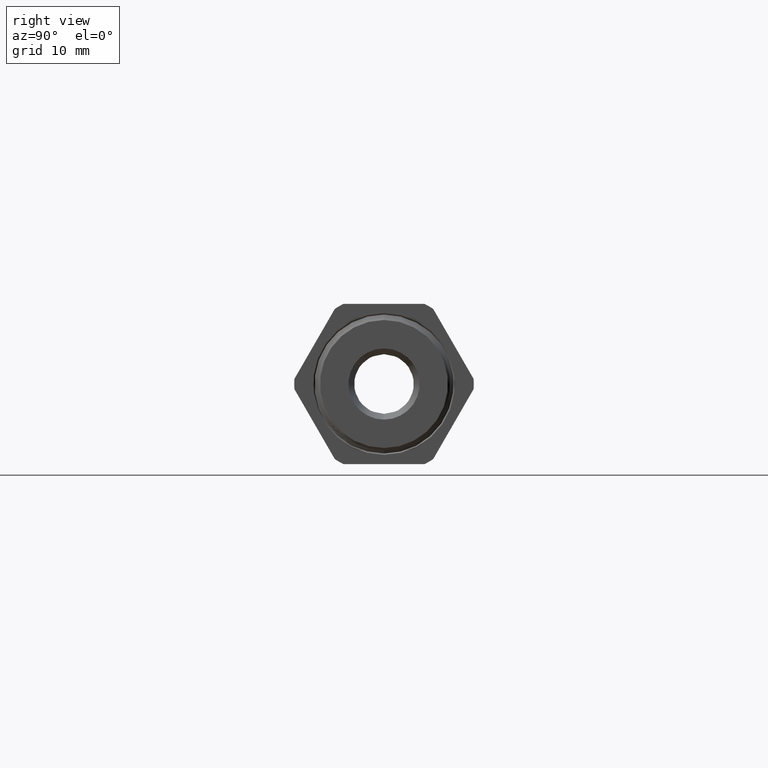
[diagram: clean part render]
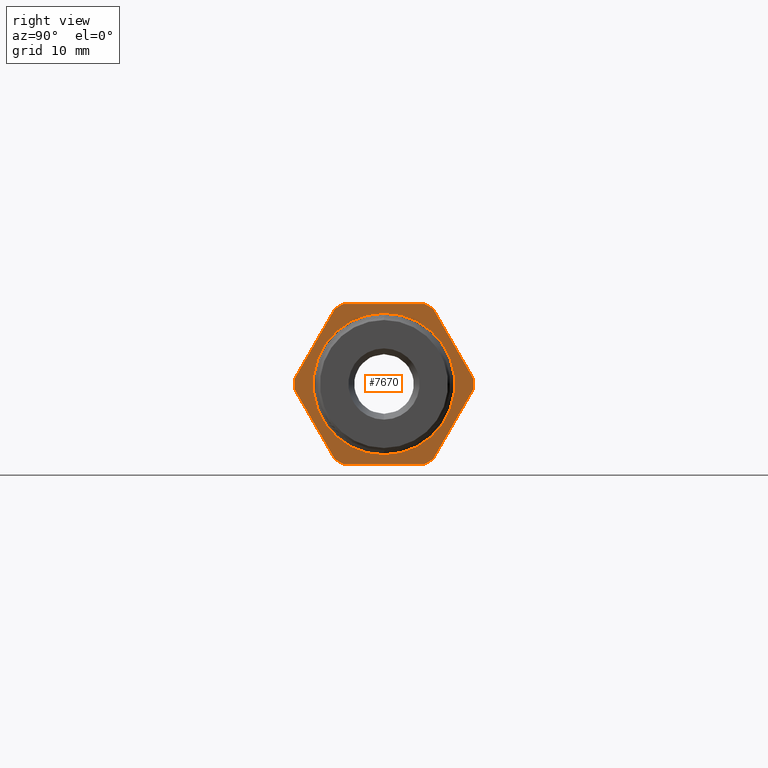
[diagram: same view with one face highlighted and labeled with its STEP entity id]
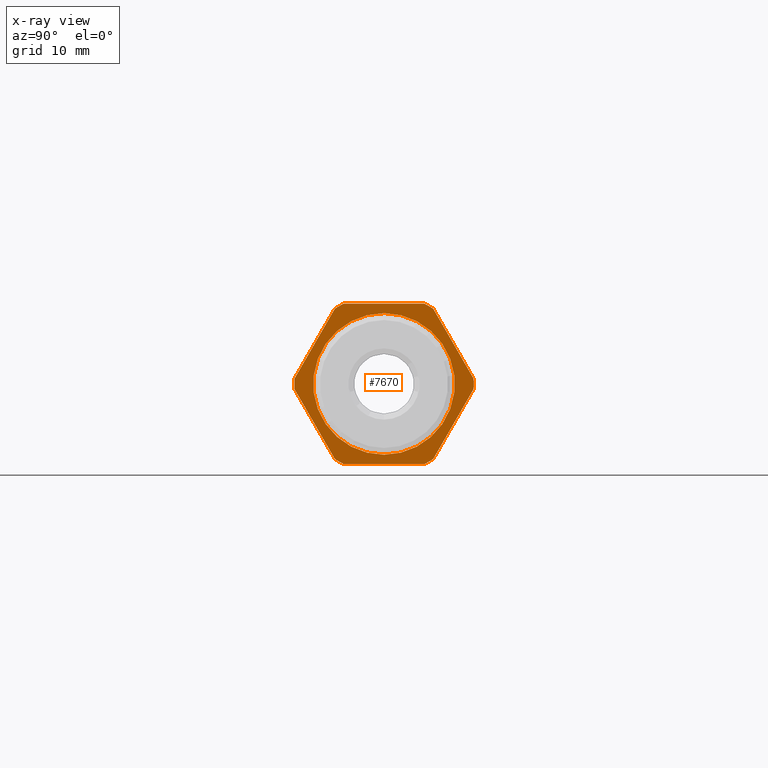
[diagram: x-ray of the same camera — body ghosted, the highlighted face saturated]
A machine part, right view. The second image highlights one B-rep face of the part: STEP entity #7670.
The next image is the same camera in x-ray: the body ghosted, the highlighted face saturated — about 0% of this face is hidden behind the body in this view.
In plain terms, the highlighted planar face has unit normal (-1, 0, 0).
Its self-contained STEP definition (entity closure, byte-faithful):
#2202 = VERTEX_POINT ( 'NONE', #10396 ) ;
#2206 = EDGE_CURVE ( 'NONE', #2209, #2202, #10438, .T. ) ;
#2209 = VERTEX_POINT ( 'NONE', #10518 ) ;
#6137 = PLANE ( 'NONE',  #6208 ) ;
#6138 = FACE_BOUND ( 'NONE', #7735, .T. ) ;
#6139 = FACE_OUTER_BOUND ( 'NONE', #7672, .T. ) ;
#6148 = CARTESIAN_POINT ( 'NONE',  ( 0.0000000000000000000, 0.2885024497772522000, 0.4402990988777105700 ) ) ;
#6149 = DIRECTION ( 'NONE',  ( 0.0000000000000000000, -0.5000000000000001100, 0.8660254037844386000 ) ) ;
#6150 = VECTOR ( 'NONE', #6149, 39.37007874015748100 ) ;
#6151 = CARTESIAN_POINT ( 'NONE',  ( 0.0000000000000000000, 0.5255614297801198800, 0.02970090112228930500 ) ) ;
#6152 = LINE ( 'NONE', #6151, #6150 ) ;
#6193 = CARTESIAN_POINT ( 'NONE',  ( 0.0000000000000000000, -0.2370589800028678500, -0.4699999999999997500 ) ) ;
#6194 = DIRECTION ( 'NONE',  ( 0.0000000000000000000, 0.0000000000000000000, 1.000000000000000000 ) ) ;
#6195 = DIRECTION ( 'NONE',  ( -1.000000000000000000, 0.0000000000000000000, 0.0000000000000000000 ) ) ;
#6196 = CARTESIAN_POINT ( 'NONE',  ( 0.0000000000000000000, 0.0000000000000000000, 0.0000000000000000000 ) ) ;
#6197 = AXIS2_PLACEMENT_3D ( 'NONE', #6196, #6195, #6194 ) ;
#6198 = CIRCLE ( 'NONE', #6197, 0.5263999999999999800 ) ;
#6199 = CARTESIAN_POINT ( 'NONE',  ( 0.0000000000000000000, -0.2885024497772522600, -0.4402990988777105700 ) ) ;
#6200 = CARTESIAN_POINT ( 'NONE',  ( 0.0000000000000000000, -0.5255614297801198800, -0.02970090112228941000 ) ) ;
#6201 = DIRECTION ( 'NONE',  ( 0.0000000000000000000, 0.5000000000000001100, -0.8660254037844386000 ) ) ;
#6202 = VECTOR ( 'NONE', #6201, 39.37007874015748100 ) ;
#6203 = CARTESIAN_POINT ( 'NONE',  ( 0.0000000000000000000, -0.5255614297801198800, -0.02970090112228941000 ) ) ;
#6204 = LINE ( 'NONE', #6203, #6202 ) ;
#6205 = DIRECTION ( 'NONE',  ( 0.0000000000000000000, 0.0000000000000000000, 1.000000000000000000 ) ) ;
#6206 = DIRECTION ( 'NONE',  ( -1.000000000000000000, 0.0000000000000000000, 0.0000000000000000000 ) ) ;
#6207 = CARTESIAN_POINT ( 'NONE',  ( 0.0000000000000000000, 0.5263999999999999800, 0.0000000000000000000 ) ) ;
#6208 = AXIS2_PLACEMENT_3D ( 'NONE', #6207, #6206, #6205 ) ;
#6236 = LINE ( 'NONE', #6300, #6299 ) ;
#6237 = CARTESIAN_POINT ( 'NONE',  ( 0.0000000000000000000, 0.2370589800028677600, 0.4699999999999998600 ) ) ;
#6238 = DIRECTION ( 'NONE',  ( 0.0000000000000000000, 0.0000000000000000000, 1.000000000000000000 ) ) ;
#6239 = DIRECTION ( 'NONE',  ( -1.000000000000000000, 0.0000000000000000000, 0.0000000000000000000 ) ) ;
#6240 = CARTESIAN_POINT ( 'NONE',  ( 0.0000000000000000000, 0.0000000000000000000, 0.0000000000000000000 ) ) ;
#6241 = AXIS2_PLACEMENT_3D ( 'NONE', #6240, #6239, #6238 ) ;
#6246 = CIRCLE ( 'NONE', #6241, 0.5263999999999999800 ) ;
#6260 = DIRECTION ( 'NONE',  ( 0.0000000000000000000, 0.0000000000000000000, 1.000000000000000000 ) ) ;
#6261 = DIRECTION ( 'NONE',  ( 1.000000000000000000, 0.0000000000000000000, 0.0000000000000000000 ) ) ;
#6262 = CARTESIAN_POINT ( 'NONE',  ( 0.0000000000000000000, 0.0000000000000000000, 0.0000000000000000000 ) ) ;
#6263 = AXIS2_PLACEMENT_3D ( 'NONE', #6262, #6261, #6260 ) ;
#6264 = CIRCLE ( 'NONE', #6263, 0.4149999999999998100 ) ;
#6270 = DIRECTION ( 'NONE',  ( 0.0000000000000000000, 0.0000000000000000000, 1.000000000000000000 ) ) ;
#6271 = DIRECTION ( 'NONE',  ( -1.000000000000000000, 0.0000000000000000000, 0.0000000000000000000 ) ) ;
#6272 = CARTESIAN_POINT ( 'NONE',  ( 0.0000000000000000000, 0.0000000000000000000, 0.0000000000000000000 ) ) ;
#6273 = AXIS2_PLACEMENT_3D ( 'NONE', #6272, #6271, #6270 ) ;
#6274 = CIRCLE ( 'NONE', #6273, 0.5263999999999999800 ) ;
#6275 = CARTESIAN_POINT ( 'NONE',  ( 0.0000000000000000000, 0.2885024497772524200, -0.4402990988777104000 ) ) ;
#6276 = CARTESIAN_POINT ( 'NONE',  ( 0.0000000000000000000, 0.2370589800028677400, -0.4699999999999999200 ) ) ;
#6277 = DIRECTION ( 'NONE',  ( 0.0000000000000000000, 1.000000000000000000, 0.0000000000000000000 ) ) ;
#6278 = VECTOR ( 'NONE', #6277, 39.37007874015748100 ) ;
#6279 = CARTESIAN_POINT ( 'NONE',  ( 0.0000000000000000000, -0.2370589800028677400, -0.4699999999999999200 ) ) ;
#6280 = LINE ( 'NONE', #6279, #6278 ) ;
#6281 = DIRECTION ( 'NONE',  ( 0.0000000000000000000, 0.0000000000000000000, 1.000000000000000000 ) ) ;
#6282 = DIRECTION ( 'NONE',  ( -1.000000000000000000, 0.0000000000000000000, 0.0000000000000000000 ) ) ;
#6283 = CARTESIAN_POINT ( 'NONE',  ( 0.0000000000000000000, 0.0000000000000000000, 0.0000000000000000000 ) ) ;
#6284 = AXIS2_PLACEMENT_3D ( 'NONE', #6283, #6282, #6281 ) ;
#6285 = CIRCLE ( 'NONE', #6284, 0.5263999999999999800 ) ;
#6286 = CARTESIAN_POINT ( 'NONE',  ( 0.0000000000000000000, -0.5255614297801199900, 0.02970090112228907300 ) ) ;
#6287 = DIRECTION ( 'NONE',  ( 0.0000000000000000000, -0.5000000000000000000, -0.8660254037844386000 ) ) ;
#6288 = VECTOR ( 'NONE', #6287, 39.37007874015748900 ) ;
#6289 = CARTESIAN_POINT ( 'NONE',  ( 0.0000000000000000000, -0.2885024497772518700, 0.4402990988777108500 ) ) ;
#6290 = LINE ( 'NONE', #6289, #6288 ) ;
#6291 = CARTESIAN_POINT ( 'NONE',  ( 0.0000000000000000000, -0.2885024497772517000, 0.4402990988777108500 ) ) ;
#6292 = DIRECTION ( 'NONE',  ( 0.0000000000000000000, 0.0000000000000000000, 1.000000000000000000 ) ) ;
#6293 = DIRECTION ( 'NONE',  ( -1.000000000000000000, 0.0000000000000000000, 0.0000000000000000000 ) ) ;
#6294 = CARTESIAN_POINT ( 'NONE',  ( 0.0000000000000000000, 0.0000000000000000000, 0.0000000000000000000 ) ) ;
#6295 = AXIS2_PLACEMENT_3D ( 'NONE', #6294, #6293, #6292 ) ;
#6296 = CIRCLE ( 'NONE', #6295, 0.5263999999999999800 ) ;
#6297 = CARTESIAN_POINT ( 'NONE',  ( 0.0000000000000000000, -0.2370589800028677400, 0.4699999999999999200 ) ) ;
#6298 = DIRECTION ( 'NONE',  ( 0.0000000000000000000, -1.000000000000000000, 0.0000000000000000000 ) ) ;
#6299 = VECTOR ( 'NONE', #6298, 39.37007874015748100 ) ;
#6300 = CARTESIAN_POINT ( 'NONE',  ( 0.0000000000000000000, 0.2370589800028677400, 0.4699999999999999200 ) ) ;
#6323 = CARTESIAN_POINT ( 'NONE',  ( 0.0000000000000000000, 0.5255614297801198800, 0.02970090112228932300 ) ) ;
#6324 = DIRECTION ( 'NONE',  ( 0.0000000000000000000, 0.0000000000000000000, 1.000000000000000000 ) ) ;
#6325 = DIRECTION ( 'NONE',  ( -1.000000000000000000, 0.0000000000000000000, 0.0000000000000000000 ) ) ;
#6326 = CARTESIAN_POINT ( 'NONE',  ( 0.0000000000000000000, 0.0000000000000000000, 0.0000000000000000000 ) ) ;
#6327 = AXIS2_PLACEMENT_3D ( 'NONE', #6326, #6325, #6324 ) ;
#6328 = CIRCLE ( 'NONE', #6327, 0.5263999999999999800 ) ;
#6329 = CARTESIAN_POINT ( 'NONE',  ( 0.0000000000000000000, 0.5255614297801198800, -0.02970090112228958000 ) ) ;
#6330 = DIRECTION ( 'NONE',  ( 0.0000000000000000000, 0.5000000000000000000, 0.8660254037844386000 ) ) ;
#6331 = VECTOR ( 'NONE', #6330, 39.37007874015748900 ) ;
#6332 = CARTESIAN_POINT ( 'NONE',  ( 0.0000000000000000000, 0.2885024497772524200, -0.4402990988777104600 ) ) ;
#6333 = LINE ( 'NONE', #6332, #6331 ) ;
#7663 = EDGE_CURVE ( 'NONE', #7747, #7664, #6152, .T. ) ;
#7664 = VERTEX_POINT ( 'NONE', #6148 ) ;
#7665 = ORIENTED_EDGE ( 'NONE', *, *, #7721, .F. ) ;
#7670 = ADVANCED_FACE ( 'NONE', ( #6139, #6138 ), #6137, .F. ) ;
#7672 = EDGE_LOOP ( 'NONE', ( #7673, #7677, #7680, #7739, #7742, #7745, #7748, #7665, #7723, #7726, #7729, #7732 ) ) ;
#7673 = ORIENTED_EDGE ( 'NONE', *, *, #7674, .T. ) ;
#7674 = EDGE_CURVE ( 'NONE', #7675, #7676, #6204, .T. ) ;
#7675 = VERTEX_POINT ( 'NONE', #6200 ) ;
#7676 = VERTEX_POINT ( 'NONE', #6199 ) ;
#7677 = ORIENTED_EDGE ( 'NONE', *, *, #7678, .F. ) ;
#7678 = EDGE_CURVE ( 'NONE', #7679, #7676, #6198, .T. ) ;
#7679 = VERTEX_POINT ( 'NONE', #6193 ) ;
#7680 = ORIENTED_EDGE ( 'NONE', *, *, #7737, .T. ) ;
#7709 = EDGE_CURVE ( 'NONE', #2202, #2209, #6264, .T. ) ;
#7710 = ORIENTED_EDGE ( 'NONE', *, *, #2206, .F. ) ;
#7721 = EDGE_CURVE ( 'NONE', #7722, #7664, #6246, .T. ) ;
#7722 = VERTEX_POINT ( 'NONE', #6237 ) ;
#7723 = ORIENTED_EDGE ( 'NONE', *, *, #7724, .T. ) ;
#7724 = EDGE_CURVE ( 'NONE', #7722, #7725, #6236, .T. ) ;
#7725 = VERTEX_POINT ( 'NONE', #6297 ) ;
#7726 = ORIENTED_EDGE ( 'NONE', *, *, #7727, .F. ) ;
#7727 = EDGE_CURVE ( 'NONE', #7728, #7725, #6296, .T. ) ;
#7728 = VERTEX_POINT ( 'NONE', #6291 ) ;
#7729 = ORIENTED_EDGE ( 'NONE', *, *, #7730, .T. ) ;
#7730 = EDGE_CURVE ( 'NONE', #7728, #7731, #6290, .T. ) ;
#7731 = VERTEX_POINT ( 'NONE', #6286 ) ;
#7732 = ORIENTED_EDGE ( 'NONE', *, *, #7733, .F. ) ;
#7733 = EDGE_CURVE ( 'NONE', #7675, #7731, #6285, .T. ) ;
#7735 = EDGE_LOOP ( 'NONE', ( #7736, #7710 ) ) ;
#7736 = ORIENTED_EDGE ( 'NONE', *, *, #7709, .F. ) ;
#7737 = EDGE_CURVE ( 'NONE', #7679, #7738, #6280, .T. ) ;
#7738 = VERTEX_POINT ( 'NONE', #6276 ) ;
#7739 = ORIENTED_EDGE ( 'NONE', *, *, #7740, .F. ) ;
#7740 = EDGE_CURVE ( 'NONE', #7741, #7738, #6274, .T. ) ;
#7741 = VERTEX_POINT ( 'NONE', #6275 ) ;
#7742 = ORIENTED_EDGE ( 'NONE', *, *, #7743, .T. ) ;
#7743 = EDGE_CURVE ( 'NONE', #7741, #7744, #6333, .T. ) ;
#7744 = VERTEX_POINT ( 'NONE', #6329 ) ;
#7745 = ORIENTED_EDGE ( 'NONE', *, *, #7746, .F. ) ;
#7746 = EDGE_CURVE ( 'NONE', #7747, #7744, #6328, .T. ) ;
#7747 = VERTEX_POINT ( 'NONE', #6323 ) ;
#7748 = ORIENTED_EDGE ( 'NONE', *, *, #7663, .T. ) ;
#10393 = CARTESIAN_POINT ( 'NONE',  ( 0.0000000000000000000, 0.0000000000000000000, 0.0000000000000000000 ) ) ;
#10396 = CARTESIAN_POINT ( 'NONE',  ( 0.0000000000000000000, 0.0000000000000000000, -0.4149999999999998100 ) ) ;
#10435 = DIRECTION ( 'NONE',  ( 0.0000000000000000000, 0.0000000000000000000, 1.000000000000000000 ) ) ;
#10436 = DIRECTION ( 'NONE',  ( 1.000000000000000000, 0.0000000000000000000, 0.0000000000000000000 ) ) ;
#10437 = AXIS2_PLACEMENT_3D ( 'NONE', #10393, #10436, #10435 ) ;
#10438 = CIRCLE ( 'NONE', #10437, 0.4149999999999998100 ) ;
#10518 = CARTESIAN_POINT ( 'NONE',  ( 0.0000000000000000000, 5.082284216461513200E-017, 0.4149999999999998100 ) ) ;